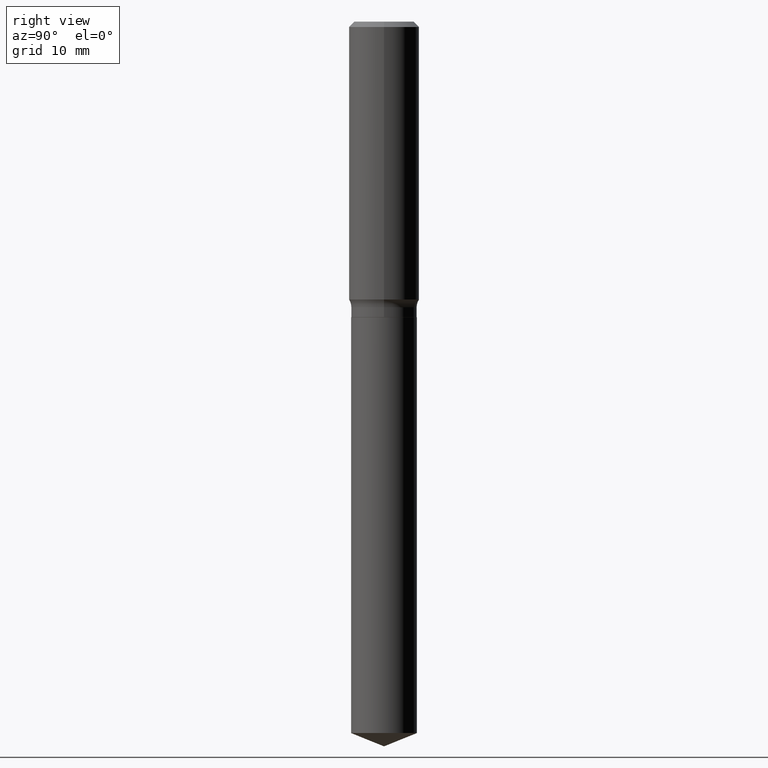
[diagram: clean part render]
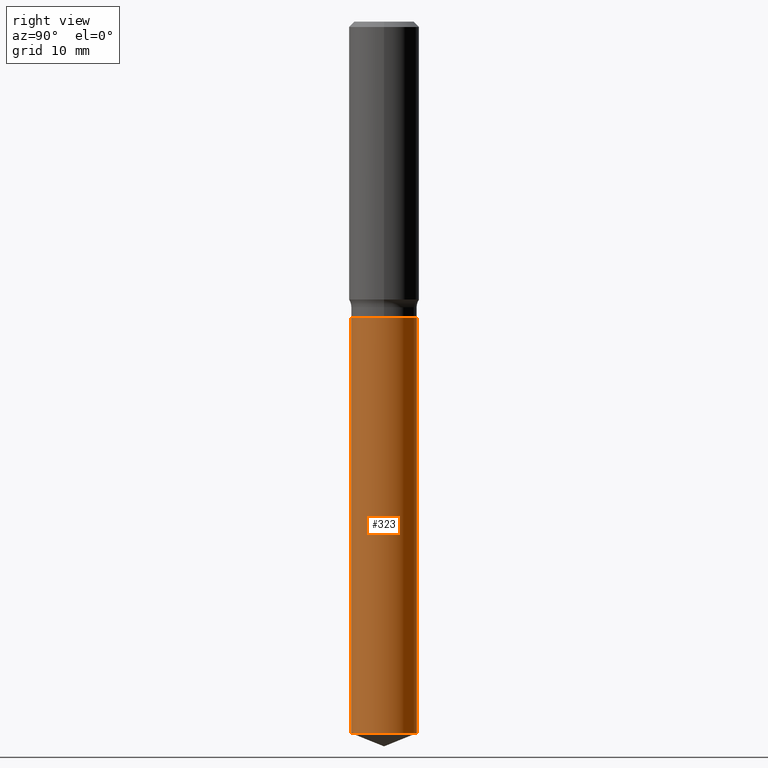
[diagram: same view with one face highlighted and labeled with its STEP entity id]
A machine part, right view. The second image highlights one B-rep face of the part: STEP entity #323.
In plain terms, the highlighted cylindrical surface (edge-blend (fillet) strip) has radius 4.6736 mm, axis along (-0, 0, 1).
Its self-contained STEP definition (entity closure, byte-faithful):
#5 = FACE_OUTER_BOUND ( 'NONE', #353, .T. ) ;
#6 = ORIENTED_EDGE ( 'NONE', *, *, #257, .T. ) ;
#37 = CARTESIAN_POINT ( 'NONE',  ( 1.307398633798681744E-15, 0.1839999999999861469, -3.980659174446332660 ) ) ;
#78 = CIRCLE ( 'NONE', #400, 0.1839999999999999969 ) ;
#79 = DIRECTION ( 'NONE',  ( -2.445395198468639385E-29, 3.491586749282660968E-15, 1.000000000000000000 ) ) ;
#81 = DIRECTION ( 'NONE',  ( -2.445395198468639385E-29, 3.491586749282660968E-15, 1.000000000000000000 ) ) ;
#105 = DIRECTION ( 'NONE',  ( -6.982962677686265133E-15, -1.000000000000000000, 2.969399993113329585E-15 ) ) ;
#113 = CARTESIAN_POINT ( 'NONE',  ( -1.284865132694232346E-15, -0.1840000000000057701, -1.653399999999999093 ) ) ;
#118 = DIRECTION ( 'NONE',  ( -2.445395198468639105E-29, 3.491586749282660968E-15, 1.000000000000000000 ) ) ;
#126 = VERTEX_POINT ( 'NONE', #135 ) ;
#135 = CARTESIAN_POINT ( 'NONE',  ( 1.307398633798681744E-15, 0.1839999999999941960, -1.653400000000000203 ) ) ;
#148 = AXIS2_PLACEMENT_3D ( 'NONE', #183, #79, #149 ) ;
#149 = DIRECTION ( 'NONE',  ( -6.982962677686265133E-15, -1.000000000000000000, 2.969399993113329585E-15 ) ) ;
#150 = ORIENTED_EDGE ( 'NONE', *, *, #274, .F. ) ;
#169 = VERTEX_POINT ( 'NONE', #212 ) ;
#176 = EDGE_CURVE ( 'NONE', #339, #126, #216, .T. ) ;
#181 = CYLINDRICAL_SURFACE ( 'NONE', #148, 0.1839999999999999969 ) ;
#183 = CARTESIAN_POINT ( 'NONE',  ( 4.043338124146503856E-29, -5.772815245643255193E-15, -1.653399999999999537 ) ) ;
#184 = ORIENTED_EDGE ( 'NONE', *, *, #318, .T. ) ;
#185 = DIRECTION ( 'NONE',  ( -6.982962677686265133E-15, -1.000000000000000000, 2.969399993113329585E-15 ) ) ;
#212 = CARTESIAN_POINT ( 'NONE',  ( -1.284865132694176337E-15, -0.1840000000000139579, -3.980659174446331772 ) ) ;
#216 = CIRCLE ( 'NONE', #302, 0.1839999999999999969 ) ;
#217 = VECTOR ( 'NONE', #118, 39.37007874015748143 ) ;
#221 = CARTESIAN_POINT ( 'NONE',  ( 1.307398633798624552E-15, 0.1839999999999942237, -1.653400000000000203 ) ) ;
#257 = EDGE_CURVE ( 'NONE', #169, #263, #78, .T. ) ;
#263 = VERTEX_POINT ( 'NONE', #37 ) ;
#274 = EDGE_CURVE ( 'NONE', #169, #339, #418, .T. ) ;
#289 = CARTESIAN_POINT ( 'NONE',  ( 4.043338124146503856E-29, -5.772815245643255193E-15, -1.653399999999999537 ) ) ;
#300 = ORIENTED_EDGE ( 'NONE', *, *, #176, .F. ) ;
#302 = AXIS2_PLACEMENT_3D ( 'NONE', #289, #452, #105 ) ;
#318 = EDGE_CURVE ( 'NONE', #263, #126, #458, .T. ) ;
#323 = ADVANCED_FACE ( 'NONE', ( #5 ), #181, .T. ) ;
#339 = VERTEX_POINT ( 'NONE', #113 ) ;
#353 = EDGE_LOOP ( 'NONE', ( #6, #184, #300, #150 ) ) ;
#375 = CARTESIAN_POINT ( 'NONE',  ( 9.734406534929655028E-29, -1.389864254128657465E-14, -3.980659174446332216 ) ) ;
#376 = CARTESIAN_POINT ( 'NONE',  ( -1.284865132694232346E-15, -0.1840000000000057701, -1.653399999999999093 ) ) ;
#379 = DIRECTION ( 'NONE',  ( -2.445395198468639105E-29, 3.491586749282660968E-15, 1.000000000000000000 ) ) ;
#400 = AXIS2_PLACEMENT_3D ( 'NONE', #375, #81, #185 ) ;
#418 = LINE ( 'NONE', #376, #457 ) ;
#452 = DIRECTION ( 'NONE',  ( -2.445395198468639385E-29, 3.491586749282660968E-15, 1.000000000000000000 ) ) ;
#457 = VECTOR ( 'NONE', #379, 39.37007874015748143 ) ;
#458 = LINE ( 'NONE', #221, #217 ) ;